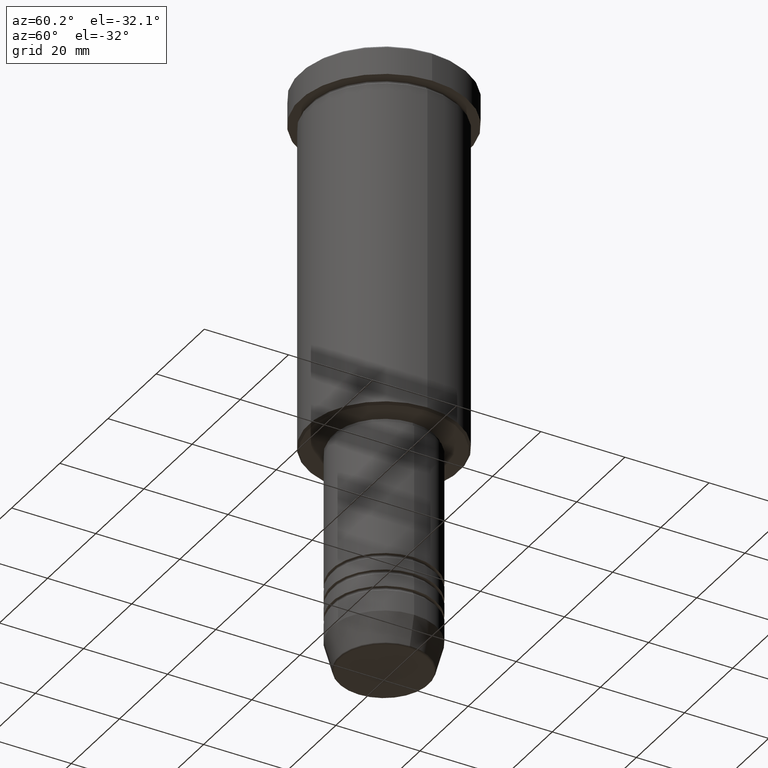
[diagram: clean part render]
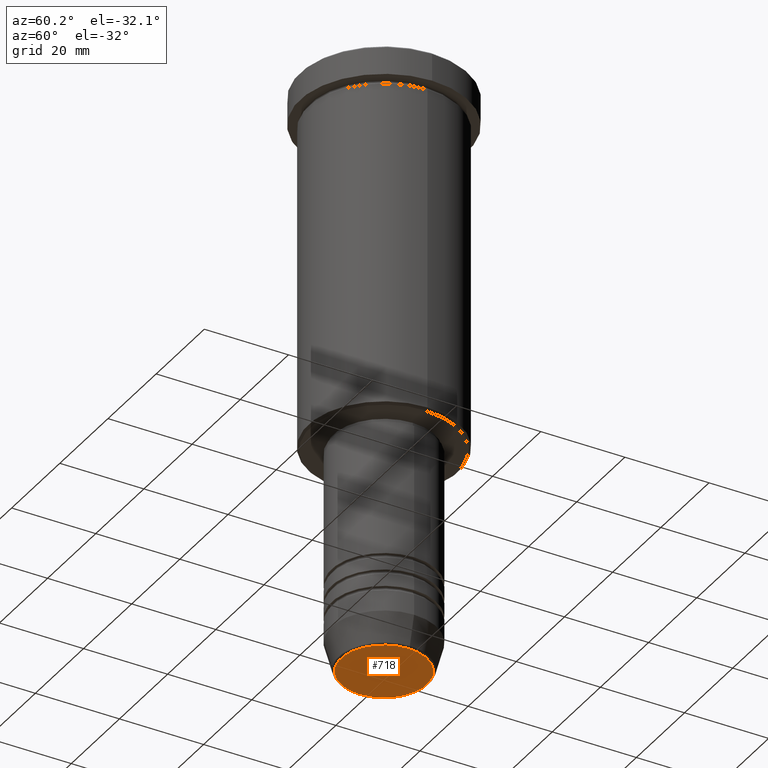
[diagram: same view with one face highlighted and labeled with its STEP entity id]
A machine part, auxiliary view. The second image highlights one B-rep face of the part: STEP entity #718.
In plain terms, the highlighted planar face has unit normal (0, -0, 1).
Its self-contained STEP definition (entity closure, byte-faithful):
#28 = FACE_OUTER_BOUND ( 'NONE', #594, .T. ) ;
#88 = CARTESIAN_POINT ( 'NONE',  ( 10.24069215899265828, 0.000000000000000000, -140.0000000000000000 ) ) ;
#114 = EDGE_CURVE ( 'NONE', #746, #970, #641, .T. ) ;
#130 = AXIS2_PLACEMENT_3D ( 'NONE', #407, #774, #1140 ) ;
#173 = CARTESIAN_POINT ( 'NONE',  ( 0.000000000000000000, 0.000000000000000000, -140.0000000000000000 ) ) ;
#305 = DIRECTION ( 'NONE',  ( 1.000000000000000000, 0.000000000000000000, 0.000000000000000000 ) ) ;
#405 = CARTESIAN_POINT ( 'NONE',  ( 0.000000000000000000, 0.000000000000000000, -140.0000000000000000 ) ) ;
#407 = CARTESIAN_POINT ( 'NONE',  ( 0.000000000000000000, 0.000000000000000000, -140.0000000000000000 ) ) ;
#456 = EDGE_CURVE ( 'NONE', #970, #746, #570, .T. ) ;
#533 = DIRECTION ( 'NONE',  ( 1.000000000000000000, 0.000000000000000000, 0.000000000000000000 ) ) ;
#560 = ORIENTED_EDGE ( 'NONE', *, *, #114, .T. ) ;
#570 = CIRCLE ( 'NONE', #755, 10.24069215899265828 ) ;
#588 = AXIS2_PLACEMENT_3D ( 'NONE', #405, #756, #305 ) ;
#594 = EDGE_LOOP ( 'NONE', ( #560, #999 ) ) ;
#641 = CIRCLE ( 'NONE', #130, 10.24069215899265828 ) ;
#718 = ADVANCED_FACE ( 'NONE', ( #28 ), #968, .F. ) ;
#746 = VERTEX_POINT ( 'NONE', #88 ) ;
#755 = AXIS2_PLACEMENT_3D ( 'NONE', #173, #1016, #533 ) ;
#756 = DIRECTION ( 'NONE',  ( 0.000000000000000000, -0.000000000000000000, 1.000000000000000000 ) ) ;
#774 = DIRECTION ( 'NONE',  ( 0.000000000000000000, 0.000000000000000000, -1.000000000000000000 ) ) ;
#866 = CARTESIAN_POINT ( 'NONE',  ( -10.24069215899265828, 1.283696036640842178E-15, -140.0000000000000000 ) ) ;
#968 = PLANE ( 'NONE',  #588 ) ;
#970 = VERTEX_POINT ( 'NONE', #866 ) ;
#999 = ORIENTED_EDGE ( 'NONE', *, *, #456, .T. ) ;
#1016 = DIRECTION ( 'NONE',  ( 0.000000000000000000, 0.000000000000000000, -1.000000000000000000 ) ) ;
#1140 = DIRECTION ( 'NONE',  ( 1.000000000000000000, 0.000000000000000000, 0.000000000000000000 ) ) ;